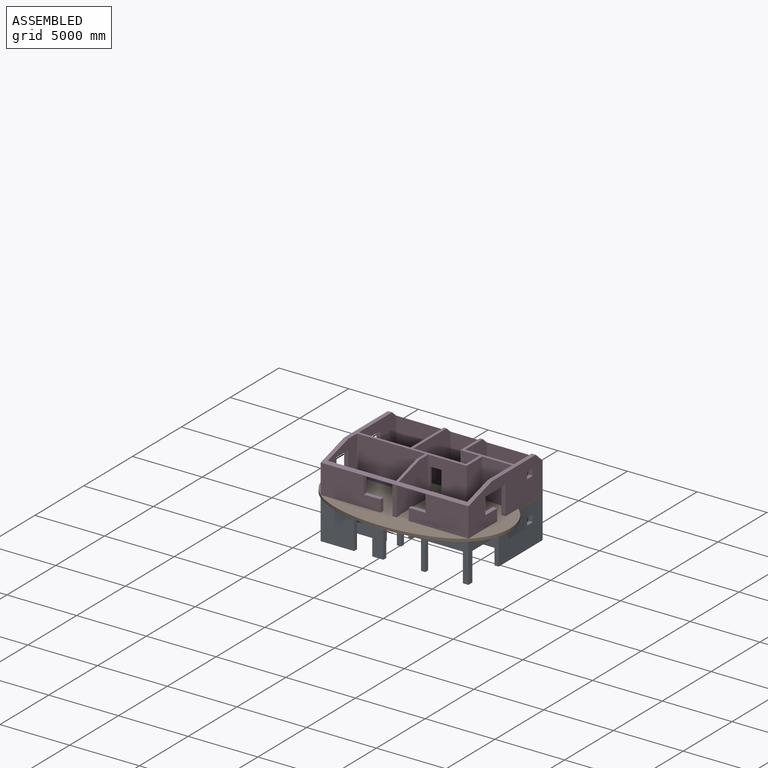
[diagram: assembled view]
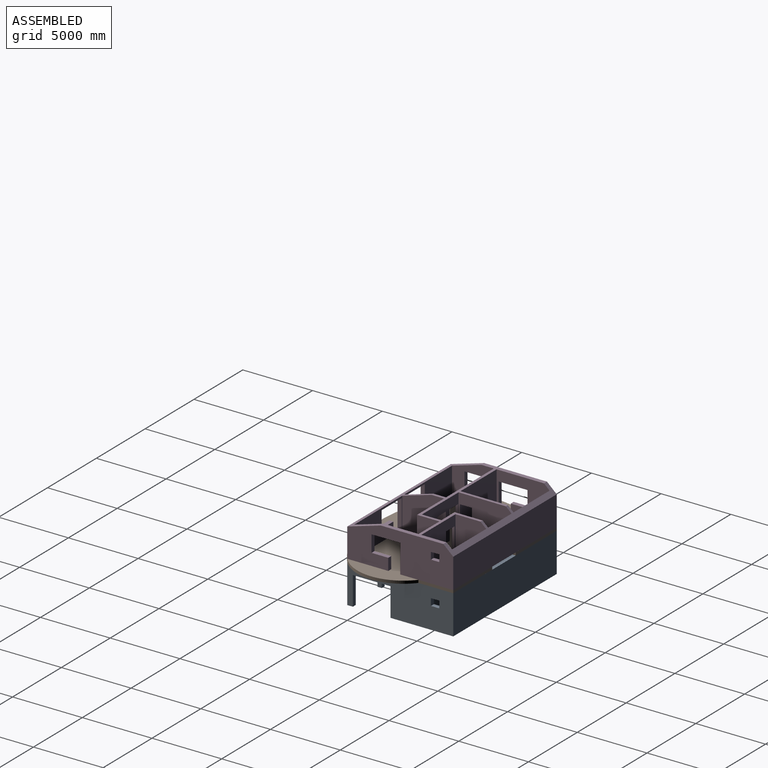
[diagram: assembled view, second angle]
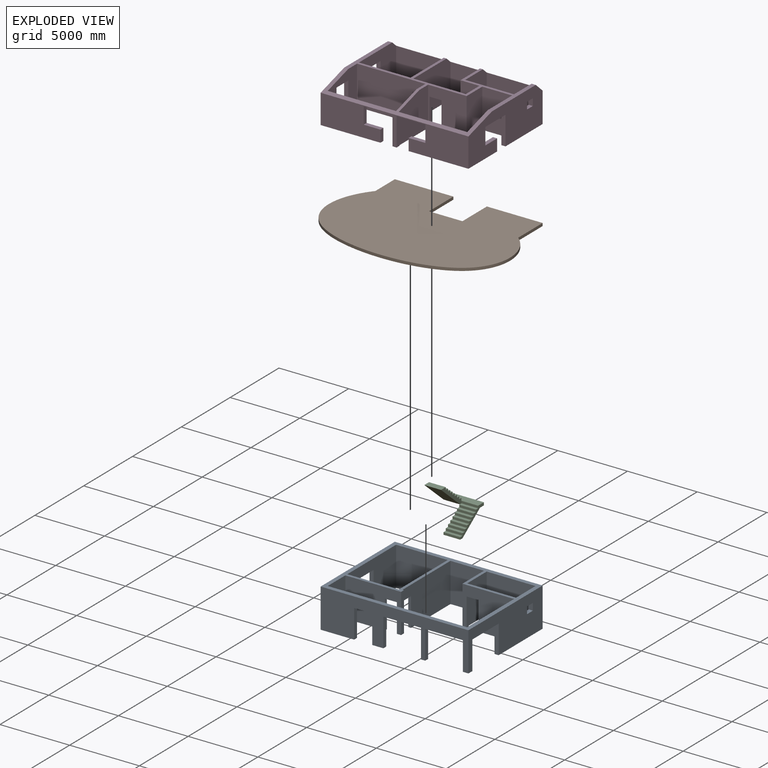
[diagram: exploded view]
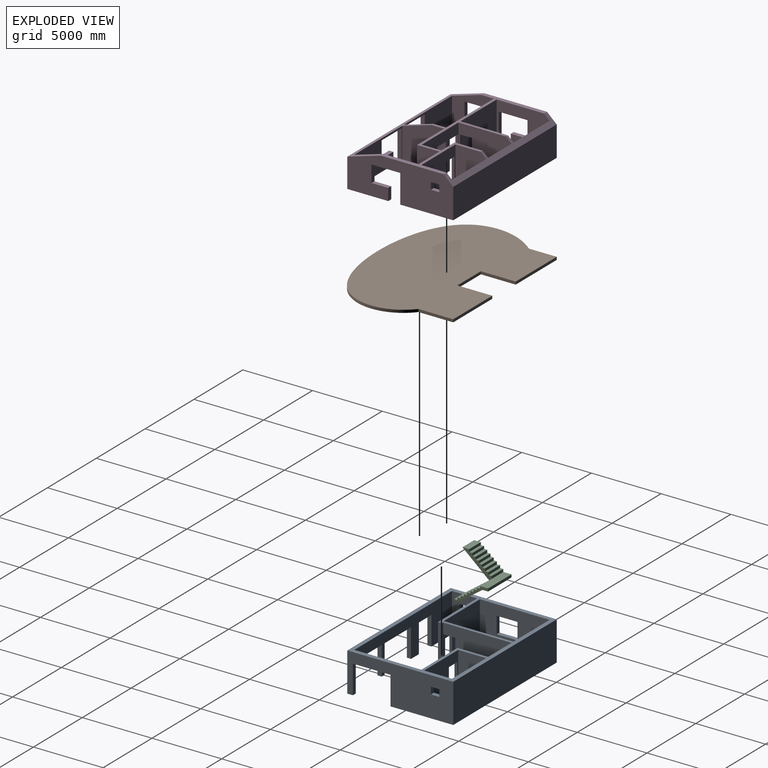
[diagram: exploded view, second angle]
ASSEMBLY  parts=4 mates=3
PART A: 59 faces, bbox 10600x7600x2800 mm
  f0: plane 10600x7600mm, normal (0,0,-1), area 9604000mm2, adj f1,f3,f4,f5,f6,f7,f8,f11
  f1: plane 3500x2800mm, normal (0,1,0), area 8037000mm2, adj f0,f14,f23,f26,f56,f57,f58
  f2: plane 300x300mm, normal (0,0,-1), area 90000mm2, adj f3,f4,f17,f25
  f3: plane 4000x2800mm, normal (0,-1,0), area 9437000mm2, adj f0,f2,f4,f7,f25,f26,f54,f55
  f4: plane 5200x2800mm, normal (-1,0,0), area 12647000mm2, adj f0,f2,f3,f16,f17,f24,f26,f52
  f5: plane 7600x2800mm, normal (-1,0,0), area 19180000mm2, adj f0,f11,f13,f26,f44,f45,f46,f47
  f6: plane 5000x2800mm, normal (1,0,0), area 12200000mm2, adj f0,f16,f24,f26,f48,f49,f50,f51
  f7: plane 2800x1800mm, normal (1,0,0), area 4740000mm2, adj f0,f3,f12,f26,f44,f45,f46,f47
  f8: plane 7600x2800mm, normal (1,0,0), area 15445000mm2, adj f0,f10,f11,f13,f26,f37,f38,f39
  f9: plane 800x300mm, normal (0,0,-1), area 240000mm2, adj f11,f12,f30,f34
  f10: plane 400x400mm, normal (0,0,-1), area 150000mm2, adj f8,f11,f12,f22,f31,f41
  f11: plane 10600x2800mm, normal (0,-1,0), area 15945000mm2, adj f0,f5,f8,f9,f10,f26,f27,f28
  f12: plane 10000x2800mm, normal (0,1,0), area 14265000mm2, adj f0,f7,f9,f10,f22,f26,f27,f28
  f13: plane 10600x2800mm, normal (0,1,0), area 29680000mm2, adj f0,f5,f8,f26
  f14: plane 2800x2000mm, normal (1,0,0), area 5600000mm2, adj f0,f1,f15,f26
  f15: plane 3500x2800mm, normal (0,-1,0), area 9800000mm2, adj f0,f14,f23,f26
  f16: plane 3700x2800mm, normal (0,-1,0), area 10360000mm2, adj f0,f4,f6,f26
  f17: plane 2800x300mm, normal (0,1,0), area 690000mm2, adj f2,f4,f18,f25,f26,f52
  f18: plane 4900x2800mm, normal (1,0,0), area 11957000mm2, adj f0,f17,f19,f26,f52,f53
  f19: plane 2800x2400mm, normal (0,-1,0), area 6720000mm2, adj f0,f18,f20,f26
  f20: plane 2800x2200mm, normal (-1,0,0), area 6160000mm2, adj f0,f19,f21,f26
  f21: plane 3700x2800mm, normal (0,-1,0), area 8597000mm2, adj f0,f20,f22,f26,f56,f57,f58
  f22: plane 4800x2800mm, normal (-1,0,0), area 7905000mm2, adj f0,f10,f12,f21,f26,f41,f42,f43
  f23: plane 2800x2000mm, normal (-1,0,0), area 5300000mm2, adj f0,f1,f15,f26,f37,f38,f39,f40
  f24: plane 3700x2800mm, normal (0,1,0), area 8597000mm2, adj f0,f4,f6,f26,f54,f55
  f25: plane 2800x300mm, normal (1,0,0), area 840000mm2, adj f2,f3,f17,f26
  f26: plane 10600x7600mm, normal (0,0,1), area 13510000mm2, adj f1,f3,f4,f5,f6,f7,f8,f11
  f27: plane 300x300mm, normal (0,0,-1), area 90000mm2, adj f11,f12,f28,f33
  f28: plane 2050x300mm, normal (-1,0,0), area 615000mm2, adj f11,f12,f27,f29
  f29: plane 2700x300mm, normal (0,0,-1), area 810000mm2, adj f11,f12,f28,f30
  f30: plane 2050x300mm, normal (1,0,0), area 615000mm2, adj f9,f11,f12,f29
  f31: plane 2050x300mm, normal (-1,0,0), area 615000mm2, adj f10,f11,f12,f32
  f32: plane 2700x300mm, normal (0,0,-1), area 810000mm2, adj f11,f12,f31,f33
  f33: plane 2050x300mm, normal (1,0,0), area 615000mm2, adj f11,f12,f27,f32
  f34: plane 2050x300mm, normal (-1,0,0), area 615000mm2, adj f9,f11,f12,f36
  f35: plane 2050x300mm, normal (1,0,0), area 615000mm2, adj f0,f11,f12,f36
  f36: plane 1300x300mm, normal (0,0,-1), area 390000mm2, adj f11,f12,f34,f35
  f37: plane 500x300mm, normal (0,1,0), area 150000mm2, adj f8,f23,f38,f39
  f38: plane 600x300mm, normal (0,0,-1), area 180000mm2, adj f8,f23,f37,f40
  f39: plane 600x300mm, normal (0,0,1), area 180000mm2, adj f8,f23,f37,f40
  f40: plane 500x300mm, normal (0,-1,0), area 150000mm2, adj f8,f23,f38,f39
  f41: plane 2050x300mm, normal (0,1,0), area 615000mm2, adj f8,f10,f22,f43
  f42: plane 2050x300mm, normal (0,-1,0), area 615000mm2, adj f0,f8,f22,f43
  f43: plane 2700x300mm, normal (0,0,-1), area 810000mm2, adj f8,f22,f41,f42
  f44: plane 600x300mm, normal (0,0,-1), area 180000mm2, adj f5,f7,f45,f47
  f45: plane 500x300mm, normal (0,-1,0), area 150000mm2, adj f5,f7,f44,f46
  f46: plane 600x300mm, normal (0,0,1), area 180000mm2, adj f5,f7,f45,f47
  f47: plane 500x300mm, normal (0,1,0), area 150000mm2, adj f5,f7,f44,f46
  f48: plane 1500x300mm, normal (0,0,-1), area 450000mm2, adj f5,f6,f49,f51
  f49: plane 1200x300mm, normal (0,-1,0), area 360000mm2, adj f5,f6,f48,f50
  f50: plane 1500x300mm, normal (0,0,1), area 450000mm2, adj f5,f6,f49,f51
  f51: plane 1200x300mm, normal (0,1,0), area 360000mm2, adj f5,f6,f48,f50
  f52: plane 860x200mm, normal (0,0,-1), area 172000mm2, adj f4,f17,f18,f53
  f53: plane 2050x200mm, normal (0,-1,0), area 410000mm2, adj f0,f4,f18,f52
  f54: plane 860x200mm, normal (0,0,-1), area 172000mm2, adj f3,f4,f24,f55
  f55: plane 2050x200mm, normal (1,0,0), area 410000mm2, adj f0,f3,f24,f54
  f56: plane 860x200mm, normal (0,0,-1), area 172000mm2, adj f1,f21,f57,f58
  f57: plane 2050x200mm, normal (-1,0,0), area 410000mm2, adj f0,f1,f21,f56
  f58: plane 2050x200mm, normal (1,0,0), area 410000mm2, adj f0,f1,f21,f56
PART B: 12 faces, bbox 13462.8x9473.3x200 mm
  f0: extruded ~10600x1481.92mm, area 2241690.4mm2, adj f1,f9,f10,f11
  f1: extruded ~5100x1197.93mm, area 1163675.1mm2, adj f0,f2,f10,f11
  f2: plane 2500x200mm, normal (1,0,0), area 500000mm2, adj f1,f3,f10,f11
  f3: plane 4000x200mm, normal (0,1,0), area 800000mm2, adj f2,f4,f10,f11
  f4: plane 2500x200mm, normal (-1,0,0), area 500000mm2, adj f3,f5,f10,f11
  f5: plane 2400x200mm, normal (0,1,0), area 480000mm2, adj f4,f6,f10,f11
  f6: plane 2500x200mm, normal (1,0,0), area 500000mm2, adj f5,f7,f10,f11
  f7: plane 4200x200mm, normal (0,1,0), area 840000mm2, adj f6,f8,f10,f11
  f8: plane 2000x200mm, normal (-1,0,0), area 400000mm2, adj f7,f9,f10,f11
  f9: extruded ~5600x1198.9mm, area 1251632.2mm2, adj f0,f8,f10,f11
  f10: plane 13462.82x9473.34mm, normal (0,0,1), area 94574794.3mm2, adj f0,f1,f2,f3,f4,f5,f6,f7
  f11: plane 13462.82x9473.34mm, normal (0,0,-1), area 94574794.3mm2, adj f0,f1,f2,f3,f4,f5,f6,f7
PART C: 43 faces, bbox 2400x2680x3000 mm
  f0: plane 1200x166.67mm, normal (0,-1,0), area 200000mm2, adj f1,f21,f22,f42
  f1: plane 1200x230mm, normal (0,0,1), area 276000mm2, adj f0,f2,f22,f23,f42
  f2: plane 1200x166.67mm, normal (0,-1,0), area 200000mm2, adj f1,f3,f22,f23
  f3: plane 1200x230mm, normal (0,0,1), area 276000mm2, adj f2,f4,f22,f23
  f4: plane 1200x166.67mm, normal (0,-1,0), area 200000mm2, adj f3,f5,f22,f23
  f5: plane 1200x230mm, normal (0,0,1), area 276000mm2, adj f4,f6,f22,f23
  f6: plane 1200x166.67mm, normal (0,-1,0), area 200000mm2, adj f5,f7,f22,f23
  f7: plane 1200x230mm, normal (0,0,1), area 276000mm2, adj f6,f8,f22,f23
  f8: plane 1200x166.67mm, normal (0,-1,0), area 200000mm2, adj f7,f9,f22,f23
  f9: plane 1200x230mm, normal (0,0,1), area 276000mm2, adj f8,f10,f22,f23
  f10: plane 1200x166.67mm, normal (0,-1,0), area 200000mm2, adj f9,f11,f22,f23
  f11: plane 1200x230mm, normal (0,0,1), area 276000mm2, adj f10,f12,f22,f23
  f12: plane 1200x166.67mm, normal (0,-1,0), area 200000mm2, adj f11,f13,f22,f23
  f13: plane 1200x230mm, normal (0,0,1), area 276000mm2, adj f12,f14,f22,f23
  f14: plane 1200x166.67mm, normal (0,-1,0), area 200000mm2, adj f13,f15,f22,f23
  f15: plane 1200x230mm, normal (0,0,1), area 276000mm2, adj f14,f16,f22,f23
  f16: plane 1200x166.67mm, normal (0,-1,0), area 200000mm2, adj f15,f17,f22,f23
  f17: plane 1200x230mm, normal (0,0,-1), area 276000mm2, adj f16,f18,f22,f23
  f18: plane 1800x1300mm, normal (0,0.59,-0.81), area 2664432.4mm2, adj f17,f19,f22,f23
  f19: plane 2400x700mm, normal (0,0,-1), area 1320000mm2, adj f18,f20,f22,f23,f25,f41
  f20: plane 2400x200mm, normal (0,1,0), area 480000mm2, adj f19,f21,f22,f41
  f21: plane 2400x590mm, normal (0,0,1), area 1416000mm2, adj f0,f20,f22,f24,f41
  f22: plane 2430x1500mm, normal (1,0,0), area 575000mm2, adj f0,f1,f2,f3,f4,f5,f6,f7
  f23: plane 2030x1333.33mm, normal (-1,0,0), area 452686.3mm2, adj f1,f2,f3,f4,f5,f6,f7,f8
  f24: plane 1200x187.5mm, normal (0,1,0), area 225000mm2, adj f21,f40,f41,f42
  f25: plane 1980x1700mm, normal (0,-0.65,-0.76), area 3131609.2mm2, adj f19,f23,f26,f41,f42
  f26: plane 1200x480mm, normal (0,0,1), area 576000mm2, adj f25,f27,f41,f42
  f27: plane 1200x187.5mm, normal (0,1,0), area 225000mm2, adj f26,f28,f41,f42
  f28: plane 1200x230mm, normal (0,0,1), area 276000mm2, adj f27,f29,f41,f42
  f29: plane 1200x187.5mm, normal (0,1,0), area 225000mm2, adj f28,f30,f41,f42
  f30: plane 1200x230mm, normal (0,0,1), area 276000mm2, adj f29,f31,f41,f42
  f31: plane 1200x187.5mm, normal (0,1,0), area 225000mm2, adj f30,f32,f41,f42
  f32: plane 1200x230mm, normal (0,0,1), area 276000mm2, adj f31,f33,f41,f42
  f33: plane 1200x187.5mm, normal (0,1,0), area 225000mm2, adj f32,f34,f41,f42
  f34: plane 1200x230mm, normal (0,0,1), area 276000mm2, adj f33,f35,f41,f42
  f35: plane 1200x187.5mm, normal (0,1,0), area 225000mm2, adj f34,f36,f41,f42
  f36: plane 1200x230mm, normal (0,0,1), area 276000mm2, adj f35,f37,f41,f42
  f37: plane 1200x187.5mm, normal (0,1,0), area 225000mm2, adj f36,f38,f41,f42
  f38: plane 1200x230mm, normal (0,0,1), area 276000mm2, adj f37,f39,f41,f42
  f39: plane 1200x187.5mm, normal (0,1,0), area 225000mm2, adj f38,f40,f41,f42
  f40: plane 1200x230mm, normal (0,0,1), area 276000mm2, adj f24,f39,f41,f42
  f41: plane 2680x1700mm, normal (-1,0,0), area 780500mm2, adj f19,f20,f21,f24,f25,f26,f27,f28
  f42: plane 2090x1666.67mm, normal (1,0,0), area 658186.3mm2, adj f0,f1,f24,f25,f26,f27,f28,f29
PART D: 75 faces, bbox 10600x7600x2800 mm
  f0: plane 7600x2800mm, normal (1,0,0), area 16707213.9mm2, adj f2,f6,f14,f20,f25,f33,f34,f35
  f1: plane 7600x2800mm, normal (-1,0,0), area 15567213.9mm2, adj f2,f6,f14,f20,f32,f52,f53,f54
  f2: plane 10600x4500mm, normal (0,0,1), area 6512000mm2, adj f0,f1,f3,f4,f5,f7,f10,f12
  f3: plane 3800x2800mm, normal (1,0,0), area 8804272.7mm2, adj f2,f9,f20,f24,f32,f67,f68,f69
  f4: plane 3800x2800mm, normal (-1,0,0), area 8804272.7mm2, adj f2,f11,f20,f31,f32,f67,f68,f69
  f5: plane 3800x2800mm, normal (1,0,0), area 7364272.7mm2, adj f2,f11,f20,f31,f32,f52,f53,f54
  f6: plane 10600x2163.64mm, normal (0,1,0), area 22934545.5mm2, adj f0,f1,f20,f71
  f7: plane 2800x2200mm, normal (1,0,0), area 6087272.7mm2, adj f2,f8,f20,f26,f71
  f8: plane 3500x2436.36mm, normal (0,-1,0), area 8527272.7mm2, adj f7,f12,f20,f71
  f9: plane 2436.36x2400mm, normal (0,-1,0), area 5847272.7mm2, adj f3,f10,f20,f71
  f10: plane 2800x2400mm, normal (-1,0,0), area 6647272.7mm2, adj f2,f9,f20,f29,f71
  f11: plane 3700x2436.36mm, normal (0,-1,0), area 9014545.5mm2, adj f4,f5,f20,f71
  f12: plane 2800x2200mm, normal (-1,0,0), area 5787272.7mm2, adj f2,f8,f20,f26,f38,f39,f40,f41
  f13: plane 3000x2800mm, normal (1,0,0), area 6311470.6mm2, adj f2,f15,f22,f32,f57,f58,f59,f60
  f14: plane 10600x2094.12mm, normal (0,-1,0), area 15791647.1mm2, adj f0,f1,f21,f25,f32,f42,f43,f44
  f15: plane 4900x2182.35mm, normal (0,1,0), area 7490529.4mm2, adj f13,f17,f21,f32,f47,f48,f49,f50
  f16: plane 4600x2800mm, normal (-1,0,0), area 9028470.6mm2, adj f2,f19,f20,f25,f28,f33,f34,f35
  f17: plane 3000x2800mm, normal (-1,0,0), area 7751470.6mm2, adj f2,f15,f21,f22,f70
  f18: plane 3000x2800mm, normal (1,0,0), area 7751470.6mm2, adj f2,f19,f21,f23,f70
  f19: plane 4900x2182.35mm, normal (0,1,0), area 7490529.4mm2, adj f16,f18,f21,f25,f42,f43,f44,f45
  f20: plane 10600x4300mm, normal (0,0,-1), area 7283000mm2, adj f0,f1,f3,f4,f5,f6,f7,f8
  f21: plane 3500x400mm, normal (0,0,-1), area 770000mm2, adj f14,f15,f17,f18,f19,f22,f23,f24
  f22: plane 4900x2800mm, normal (0,-1,0), area 11957000mm2, adj f2,f13,f17,f21,f32,f64,f65,f66
  f23: plane 2800x2760mm, normal (0,-1,0), area 5965000mm2, adj f2,f18,f20,f21,f27,f61,f62,f63
  f24: plane 3760x2800mm, normal (0,1,0), area 7002000mm2, adj f2,f3,f20,f21,f30,f32,f61,f62
  f25: plane 4290x2940mm, normal (0,0,-1), area 2079000mm2, adj f0,f14,f16,f19,f37,f42
  f26: plane 3500x2800mm, normal (0,1,0), area 8037000mm2, adj f2,f7,f12,f20,f72,f73,f74
  f27: plane 2800x1600mm, normal (1,0,0), area 4480000mm2, adj f2,f20,f23,f28
  f28: plane 2800x2140mm, normal (0,-1,0), area 5992000mm2, adj f2,f16,f20,f27
  f29: plane 2800x1360mm, normal (0,-1,0), area 2045000mm2, adj f2,f10,f20,f30,f72,f73,f74
  f30: plane 2800x1400mm, normal (-1,0,0), area 3920000mm2, adj f2,f20,f24,f29
  f31: plane 3700x2800mm, normal (0,1,0), area 10360000mm2, adj f2,f4,f5,f32
  f32: plane 4290x3650mm, normal (0,0,-1), area 3100000mm2, adj f1,f3,f4,f5,f13,f14,f15,f22
  f33: plane 2050x300mm, normal (0,-1,0), area 615000mm2, adj f0,f16,f20,f34
  f34: plane 2060x300mm, normal (0,0,-1), area 618000mm2, adj f0,f16,f33,f36
  f35: plane 1200x300mm, normal (0,0,1), area 360000mm2, adj f0,f16,f36,f37
  f36: plane 1200x300mm, normal (0,1,0), area 360000mm2, adj f0,f16,f34,f35
  f37: plane 850x300mm, normal (0,1,0), area 255000mm2, adj f0,f16,f25,f35
  f38: plane 500x300mm, normal (0,1,0), area 150000mm2, adj f0,f12,f39,f40
  f39: plane 600x300mm, normal (0,0,-1), area 180000mm2, adj f0,f12,f38,f41
  f40: plane 600x300mm, normal (0,0,1), area 180000mm2, adj f0,f12,f38,f41
  f41: plane 500x300mm, normal (0,-1,0), area 150000mm2, adj f0,f12,f39,f40
  f42: plane 850x300mm, normal (-1,0,0), area 255000mm2, adj f14,f19,f25,f43
  f43: plane 1200x300mm, normal (0,0,1), area 360000mm2, adj f14,f19,f42,f44
  f44: plane 1200x300mm, normal (-1,0,0), area 360000mm2, adj f14,f19,f43,f46
  f45: plane 2050x300mm, normal (1,0,0), area 615000mm2, adj f14,f19,f21,f46
  f46: plane 2060x300mm, normal (0,0,-1), area 618000mm2, adj f14,f19,f44,f45
  f47: plane 2050x300mm, normal (-1,0,0), area 615000mm2, adj f14,f15,f21,f48
  f48: plane 2060x300mm, normal (0,0,-1), area 618000mm2, adj f14,f15,f47,f49
  f49: plane 1200x300mm, normal (1,0,0), area 360000mm2, adj f14,f15,f48,f50
  f50: plane 1200x300mm, normal (0,0,1), area 360000mm2, adj f14,f15,f49,f51
  f51: plane 850x300mm, normal (1,0,0), area 255000mm2, adj f14,f15,f32,f50
  f52: plane 2050x300mm, normal (0,1,0), area 615000mm2, adj f1,f5,f32,f53
  f53: plane 2060x300mm, normal (0,0,-1), area 618000mm2, adj f1,f5,f52,f54
  f54: plane 1200x300mm, normal (0,-1,0), area 360000mm2, adj f1,f5,f53,f55
  f55: plane 1200x300mm, normal (0,0,1), area 360000mm2, adj f1,f5,f54,f56
  f56: plane 850x300mm, normal (0,-1,0), area 255000mm2, adj f1,f5,f20,f55
  f57: plane 1200x300mm, normal (0,0,-1), area 360000mm2, adj f1,f13,f58,f60
  f58: plane 1200x300mm, normal (0,-1,0), area 360000mm2, adj f1,f13,f57,f59
  f59: plane 1200x300mm, normal (0,0,1), area 360000mm2, adj f1,f13,f58,f60
  f60: plane 1200x300mm, normal (0,1,0), area 360000mm2, adj f1,f13,f57,f59
  f61: plane 860x200mm, normal (0,0,-1), area 172000mm2, adj f23,f24,f62,f63
  f62: plane 2050x200mm, normal (-1,0,0), area 410000mm2, adj f20,f23,f24,f61
  f63: plane 2050x200mm, normal (1,0,0), area 410000mm2, adj f21,f23,f24,f61
  f64: plane 860x200mm, normal (0,0,-1), area 172000mm2, adj f22,f24,f65,f66
  f65: plane 2050x200mm, normal (-1,0,0), area 410000mm2, adj f21,f22,f24,f64
  f66: plane 2050x200mm, normal (1,0,0), area 410000mm2, adj f22,f24,f32,f64
  f67: plane 860x200mm, normal (0,0,-1), area 172000mm2, adj f3,f4,f68,f69
  f68: plane 2050x200mm, normal (0,-1,0), area 410000mm2, adj f3,f4,f20,f67
  f69: plane 2050x200mm, normal (0,1,0), area 410000mm2, adj f3,f4,f32,f67
  f70: plane 10600x2400mm, normal (0,-0.28,0.96), area 5065848.2mm2, adj f0,f1,f2,f13,f14,f15,f16,f17
  f71: plane 10600x700mm, normal (0,0.67,0.74), area 4838229.6mm2, adj f0,f1,f2,f3,f4,f5,f6,f7
  f72: plane 2050x200mm, normal (-1,0,0), area 410000mm2, adj f20,f26,f29,f74
  f73: plane 2050x200mm, normal (1,0,0), area 410000mm2, adj f20,f26,f29,f74
  f74: plane 860x200mm, normal (0,0,-1), area 172000mm2, adj f26,f29,f72,f73
PLACE A t=(-1511.35,-41.3,-1921.55)mm
PLACE B t=(-1511.35,-41.3,878.45)mm
PLACE C t=(-1411.35,1258.7,-1921.55)mm
PLACE D t=(-1511.35,-41.3,1078.45)mm
MATE fastened D.f20 <-> B.f10  axis (0,0,1) through (3788.65,3758.7,1078.45)mm
MATE fastened A.f0 <-> C.f17  axis (0,0,-1) through (-211.35,1258.7,-1921.55)mm
MATE fastened B.f3 <-> A.f13  axis (0,-1,0) through (3788.65,3758.7,878.45)mm
